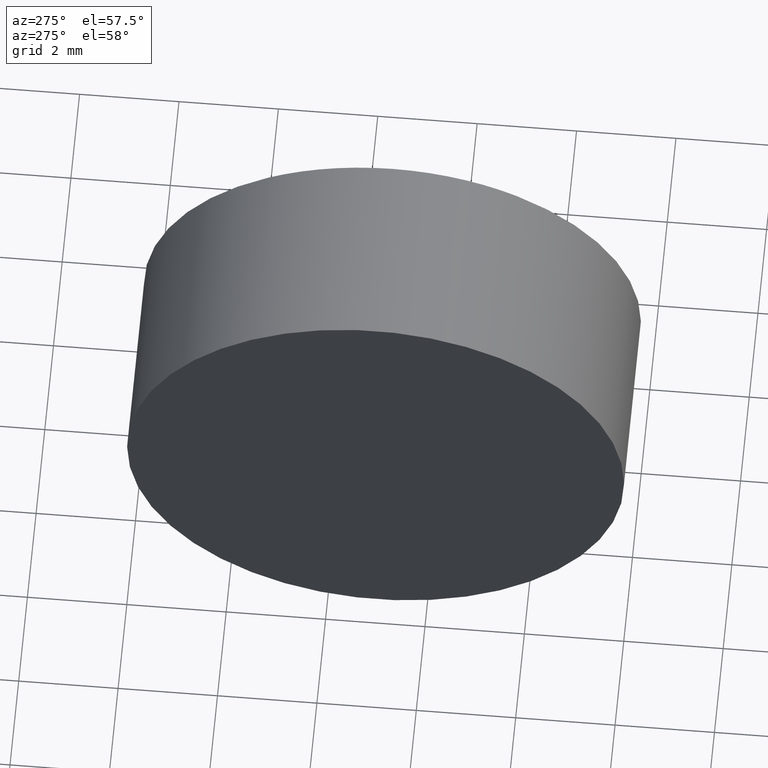
[diagram: clean part render]
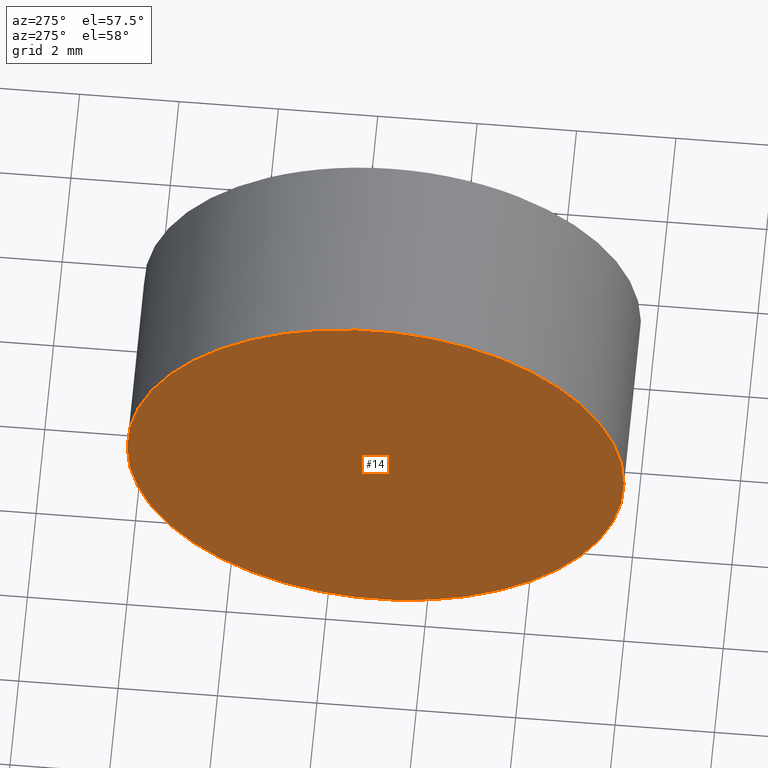
[diagram: same view with one face highlighted and labeled with its STEP entity id]
A machine part, auxiliary view. The second image highlights one B-rep face of the part: STEP entity #14.
In plain terms, the highlighted planar face has unit normal (1, -0, 0).
Its self-contained STEP definition (entity closure, byte-faithful):
#6 = EDGE_CURVE ( 'NONE', #61, #115, #154, .T. ) ;
#12 = CARTESIAN_POINT ( 'NONE',  ( 22.42423205362066000, 13.03112609140304200, 0.0000000000000000000 ) ) ;
#13 = PLANE ( 'NONE',  #39 ) ;
#14 = ADVANCED_FACE ( 'NONE', ( #41 ), #13, .F. ) ;
#23 = DIRECTION ( 'NONE',  ( 3.159171411554934600E-016, 1.000000000000000000, 0.0000000000000000000 ) ) ;
#35 = AXIS2_PLACEMENT_3D ( 'NONE', #83, #67, #96 ) ;
#39 = AXIS2_PLACEMENT_3D ( 'NONE', #40, #94, #23 ) ;
#40 = CARTESIAN_POINT ( 'NONE',  ( 22.42423205362066000, 13.03112609140304200, 0.0000000000000000000 ) ) ;
#41 = FACE_OUTER_BOUND ( 'NONE', #164, .T. ) ;
#43 = AXIS2_PLACEMENT_3D ( 'NONE', #12, #149, #63 ) ;
#51 = CARTESIAN_POINT ( 'NONE',  ( 22.42423205362066000, 8.031126091403040200, 0.0000000000000000000 ) ) ;
#59 = ORIENTED_EDGE ( 'NONE', *, *, #118, .T. ) ;
#61 = VERTEX_POINT ( 'NONE', #107 ) ;
#63 = DIRECTION ( 'NONE',  ( 0.0000000000000000000, -1.000000000000000000, 0.0000000000000000000 ) ) ;
#67 = DIRECTION ( 'NONE',  ( -1.000000000000000000, 3.159171411554934600E-016, -0.0000000000000000000 ) ) ;
#83 = CARTESIAN_POINT ( 'NONE',  ( 22.42423205362066000, 13.03112609140304200, 0.0000000000000000000 ) ) ;
#94 = DIRECTION ( 'NONE',  ( 1.000000000000000000, -3.159171411554934600E-016, 0.0000000000000000000 ) ) ;
#96 = DIRECTION ( 'NONE',  ( 0.0000000000000000000, -1.000000000000000000, 0.0000000000000000000 ) ) ;
#107 = CARTESIAN_POINT ( 'NONE',  ( 22.42423205362066000, 18.03112609140304200, 6.123233995736768300E-016 ) ) ;
#114 = CIRCLE ( 'NONE', #35, 5.000000000000000900 ) ;
#115 = VERTEX_POINT ( 'NONE', #51 ) ;
#118 = EDGE_CURVE ( 'NONE', #115, #61, #114, .T. ) ;
#119 = ORIENTED_EDGE ( 'NONE', *, *, #6, .T. ) ;
#149 = DIRECTION ( 'NONE',  ( -1.000000000000000000, 3.159171411554934600E-016, -0.0000000000000000000 ) ) ;
#154 = CIRCLE ( 'NONE', #43, 5.000000000000000900 ) ;
#164 = EDGE_LOOP ( 'NONE', ( #59, #119 ) ) ;